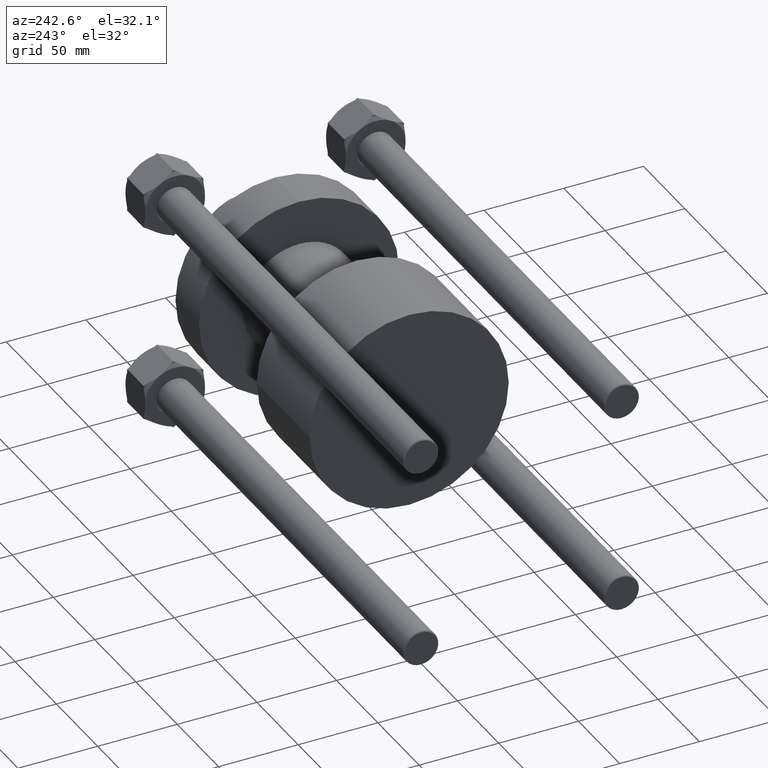
[diagram: clean part render]
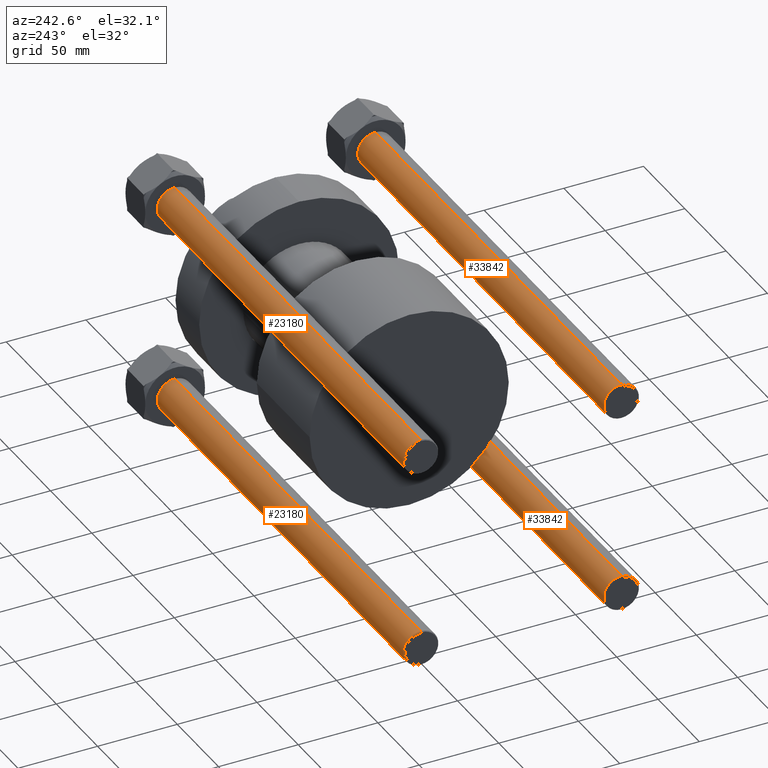
[diagram: same view with one multi-face feature highlighted, each face labeled with its STEP entity id]
A machine part, auxiliary view. The highlighted faces form ONE feature: a constant-radius fillet chain: 4 tangent blend faces with common blend radius 11 mm. The faces share edges in the B-rep.
Their STEP definitions:
[1] entity #23180 (Cylinder):
#1008 = DIRECTION ( 'NONE',  ( -0.000000000000000000, -0.000000000000000000, 1.000000000000000000 ) ) ;
#1138 = EDGE_CURVE ( 'NONE', #49031, #11271, #41630, .T. ) ;
#1172 = DIRECTION ( 'NONE',  ( -1.000000000000000000, 0.000000000000000000, 0.000000000000000000 ) ) ;
#2385 = EDGE_CURVE ( 'NONE', #49698, #22311, #16676, .T. ) ;
#4022 = VECTOR ( 'NONE', #42386, 1000.000000000000000 ) ;
#4256 = DIRECTION ( 'NONE',  ( -0.000000000000000000, -0.000000000000000000, -1.000000000000000000 ) ) ;
#7233 = AXIS2_PLACEMENT_3D ( 'NONE', #20088, #1008, #35116 ) ;
#7757 = DIRECTION ( 'NONE',  ( 0.000000000000000000, 0.000000000000000000, -1.000000000000000000 ) ) ;
#8257 = CARTESIAN_POINT ( 'NONE',  ( 0.000000000000000000, 0.000000000000000000, 323.5000000000000000 ) ) ;
#11271 = VERTEX_POINT ( 'NONE', #28974 ) ;
#11633 = DIRECTION ( 'NONE',  ( -0.000000000000000000, -0.000000000000000000, -1.000000000000000000 ) ) ;
#11712 = CIRCLE ( 'NONE', #35264, 11.00000000000000000 ) ;
#13468 = CARTESIAN_POINT ( 'NONE',  ( -11.00000000000000000, 0.000000000000000000, 0.5000000000000559552 ) ) ;
#13890 = EDGE_CURVE ( 'NONE', #49698, #49031, #11712, .T. ) ;
#16676 = LINE ( 'NONE', #32195, #21101 ) ;
#17119 = ORIENTED_EDGE ( 'NONE', *, *, #1138, .T. ) ;
#17306 = ORIENTED_EDGE ( 'NONE', *, *, #13890, .T. ) ;
#20088 = CARTESIAN_POINT ( 'NONE',  ( 0.000000000000000000, 0.000000000000000000, 0.5000000000000559552 ) ) ;
#20512 = CYLINDRICAL_SURFACE ( 'NONE', #32164, 11.00000000000000000 ) ;
#21101 = VECTOR ( 'NONE', #11633, 1000.000000000000000 ) ;
#21127 = ORIENTED_EDGE ( 'NONE', *, *, #45595, .T. ) ;
#22311 = VERTEX_POINT ( 'NONE', #13468 ) ;
#23180 = ADVANCED_FACE ( 'NONE', ( #39841 ), #20512, .T. ) ;
#28974 = CARTESIAN_POINT ( 'NONE',  ( 11.00000000000000000, 1.347111479062088405E-15, 0.5000000000000559552 ) ) ;
#29326 = CARTESIAN_POINT ( 'NONE',  ( 11.00000000000000000, 1.347111479062088405E-15, 323.5000000000000000 ) ) ;
#32164 = AXIS2_PLACEMENT_3D ( 'NONE', #36019, #4256, #1172 ) ;
#32195 = CARTESIAN_POINT ( 'NONE',  ( -11.00000000000000000, 0.000000000000000000, 324.0000000000000000 ) ) ;
#32273 = CARTESIAN_POINT ( 'NONE',  ( -11.00000000000000000, 0.000000000000000000, 323.5000000000000000 ) ) ;
#35116 = DIRECTION ( 'NONE',  ( 1.000000000000000000, 0.000000000000000000, 0.000000000000000000 ) ) ;
#35264 = AXIS2_PLACEMENT_3D ( 'NONE', #8257, #7757, #39033 ) ;
#35656 = CIRCLE ( 'NONE', #7233, 11.00000000000000000 ) ;
#36019 = CARTESIAN_POINT ( 'NONE',  ( 0.000000000000000000, 0.000000000000000000, 324.0000000000000000 ) ) ;
#37563 = EDGE_LOOP ( 'NONE', ( #17306, #17119, #21127, #38385 ) ) ;
#38385 = ORIENTED_EDGE ( 'NONE', *, *, #2385, .F. ) ;
#39033 = DIRECTION ( 'NONE',  ( 1.000000000000000000, 0.000000000000000000, 0.000000000000000000 ) ) ;
#39841 = FACE_OUTER_BOUND ( 'NONE', #37563, .T. ) ;
#41630 = LINE ( 'NONE', #49240, #4022 ) ;
#42386 = DIRECTION ( 'NONE',  ( -0.000000000000000000, -0.000000000000000000, -1.000000000000000000 ) ) ;
#45595 = EDGE_CURVE ( 'NONE', #11271, #22311, #35656, .T. ) ;
#49031 = VERTEX_POINT ( 'NONE', #29326 ) ;
#49240 = CARTESIAN_POINT ( 'NONE',  ( 11.00000000000000000, 1.347111479062088405E-15, 324.0000000000000000 ) ) ;
#49698 = VERTEX_POINT ( 'NONE', #32273 ) ;
[2] entity #33842 (Cylinder):
#1138 = EDGE_CURVE ( 'NONE', #49031, #11271, #41630, .T. ) ;
#2385 = EDGE_CURVE ( 'NONE', #49698, #22311, #16676, .T. ) ;
#4022 = VECTOR ( 'NONE', #42386, 1000.000000000000000 ) ;
#4146 = DIRECTION ( 'NONE',  ( 1.000000000000000000, 0.000000000000000000, 0.000000000000000000 ) ) ;
#6423 = CARTESIAN_POINT ( 'NONE',  ( 0.000000000000000000, 0.000000000000000000, 323.5000000000000000 ) ) ;
#11271 = VERTEX_POINT ( 'NONE', #28974 ) ;
#11633 = DIRECTION ( 'NONE',  ( -0.000000000000000000, -0.000000000000000000, -1.000000000000000000 ) ) ;
#12903 = AXIS2_PLACEMENT_3D ( 'NONE', #42056, #49939, #15119 ) ;
#13468 = CARTESIAN_POINT ( 'NONE',  ( -11.00000000000000000, 0.000000000000000000, 0.5000000000000559552 ) ) ;
#13540 = DIRECTION ( 'NONE',  ( 0.000000000000000000, 0.000000000000000000, -1.000000000000000000 ) ) ;
#15119 = DIRECTION ( 'NONE',  ( -1.000000000000000000, 0.000000000000000000, 0.000000000000000000 ) ) ;
#16676 = LINE ( 'NONE', #32195, #21101 ) ;
#18559 = AXIS2_PLACEMENT_3D ( 'NONE', #47343, #43522, #4146 ) ;
#21101 = VECTOR ( 'NONE', #11633, 1000.000000000000000 ) ;
#22311 = VERTEX_POINT ( 'NONE', #13468 ) ;
#23529 = ORIENTED_EDGE ( 'NONE', *, *, #1138, .F. ) ;
#28974 = CARTESIAN_POINT ( 'NONE',  ( 11.00000000000000000, 1.347111479062088405E-15, 0.5000000000000559552 ) ) ;
#29318 = DIRECTION ( 'NONE',  ( 1.000000000000000000, 0.000000000000000000, 0.000000000000000000 ) ) ;
#29326 = CARTESIAN_POINT ( 'NONE',  ( 11.00000000000000000, 1.347111479062088405E-15, 323.5000000000000000 ) ) ;
#29846 = AXIS2_PLACEMENT_3D ( 'NONE', #6423, #13540, #29318 ) ;
#32195 = CARTESIAN_POINT ( 'NONE',  ( -11.00000000000000000, 0.000000000000000000, 324.0000000000000000 ) ) ;
#32273 = CARTESIAN_POINT ( 'NONE',  ( -11.00000000000000000, 0.000000000000000000, 323.5000000000000000 ) ) ;
#33842 = ADVANCED_FACE ( 'NONE', ( #38015 ), #50183, .T. ) ;
#34787 = CIRCLE ( 'NONE', #18559, 11.00000000000000000 ) ;
#35155 = EDGE_LOOP ( 'NONE', ( #23529, #44065, #37127, #47528 ) ) ;
#37127 = ORIENTED_EDGE ( 'NONE', *, *, #2385, .T. ) ;
#38015 = FACE_OUTER_BOUND ( 'NONE', #35155, .T. ) ;
#38783 = CIRCLE ( 'NONE', #29846, 11.00000000000000000 ) ;
#41630 = LINE ( 'NONE', #49240, #4022 ) ;
#42056 = CARTESIAN_POINT ( 'NONE',  ( 0.000000000000000000, 0.000000000000000000, 324.0000000000000000 ) ) ;
#42386 = DIRECTION ( 'NONE',  ( -0.000000000000000000, -0.000000000000000000, -1.000000000000000000 ) ) ;
#43092 = EDGE_CURVE ( 'NONE', #49031, #49698, #38783, .T. ) ;
#43522 = DIRECTION ( 'NONE',  ( -0.000000000000000000, -0.000000000000000000, 1.000000000000000000 ) ) ;
#44065 = ORIENTED_EDGE ( 'NONE', *, *, #43092, .T. ) ;
#45292 = EDGE_CURVE ( 'NONE', #22311, #11271, #34787, .T. ) ;
#47343 = CARTESIAN_POINT ( 'NONE',  ( 0.000000000000000000, 0.000000000000000000, 0.5000000000000559552 ) ) ;
#47528 = ORIENTED_EDGE ( 'NONE', *, *, #45292, .T. ) ;
#49031 = VERTEX_POINT ( 'NONE', #29326 ) ;
#49240 = CARTESIAN_POINT ( 'NONE',  ( 11.00000000000000000, 1.347111479062088405E-15, 324.0000000000000000 ) ) ;
#49698 = VERTEX_POINT ( 'NONE', #32273 ) ;
#49939 = DIRECTION ( 'NONE',  ( -0.000000000000000000, -0.000000000000000000, -1.000000000000000000 ) ) ;
#50183 = CYLINDRICAL_SURFACE ( 'NONE', #12903, 11.00000000000000000 ) ;
[3] entity #23180 (Cylinder):
#1008 = DIRECTION ( 'NONE',  ( -0.000000000000000000, -0.000000000000000000, 1.000000000000000000 ) ) ;
#1138 = EDGE_CURVE ( 'NONE', #49031, #11271, #41630, .T. ) ;
#1172 = DIRECTION ( 'NONE',  ( -1.000000000000000000, 0.000000000000000000, 0.000000000000000000 ) ) ;
#2385 = EDGE_CURVE ( 'NONE', #49698, #22311, #16676, .T. ) ;
#4022 = VECTOR ( 'NONE', #42386, 1000.000000000000000 ) ;
#4256 = DIRECTION ( 'NONE',  ( -0.000000000000000000, -0.000000000000000000, -1.000000000000000000 ) ) ;
#7233 = AXIS2_PLACEMENT_3D ( 'NONE', #20088, #1008, #35116 ) ;
#7757 = DIRECTION ( 'NONE',  ( 0.000000000000000000, 0.000000000000000000, -1.000000000000000000 ) ) ;
#8257 = CARTESIAN_POINT ( 'NONE',  ( 0.000000000000000000, 0.000000000000000000, 323.5000000000000000 ) ) ;
#11271 = VERTEX_POINT ( 'NONE', #28974 ) ;
#11633 = DIRECTION ( 'NONE',  ( -0.000000000000000000, -0.000000000000000000, -1.000000000000000000 ) ) ;
#11712 = CIRCLE ( 'NONE', #35264, 11.00000000000000000 ) ;
#13468 = CARTESIAN_POINT ( 'NONE',  ( -11.00000000000000000, 0.000000000000000000, 0.5000000000000559552 ) ) ;
#13890 = EDGE_CURVE ( 'NONE', #49698, #49031, #11712, .T. ) ;
#16676 = LINE ( 'NONE', #32195, #21101 ) ;
#17119 = ORIENTED_EDGE ( 'NONE', *, *, #1138, .T. ) ;
#17306 = ORIENTED_EDGE ( 'NONE', *, *, #13890, .T. ) ;
#20088 = CARTESIAN_POINT ( 'NONE',  ( 0.000000000000000000, 0.000000000000000000, 0.5000000000000559552 ) ) ;
#20512 = CYLINDRICAL_SURFACE ( 'NONE', #32164, 11.00000000000000000 ) ;
#21101 = VECTOR ( 'NONE', #11633, 1000.000000000000000 ) ;
#21127 = ORIENTED_EDGE ( 'NONE', *, *, #45595, .T. ) ;
#22311 = VERTEX_POINT ( 'NONE', #13468 ) ;
#23180 = ADVANCED_FACE ( 'NONE', ( #39841 ), #20512, .T. ) ;
#28974 = CARTESIAN_POINT ( 'NONE',  ( 11.00000000000000000, 1.347111479062088405E-15, 0.5000000000000559552 ) ) ;
#29326 = CARTESIAN_POINT ( 'NONE',  ( 11.00000000000000000, 1.347111479062088405E-15, 323.5000000000000000 ) ) ;
#32164 = AXIS2_PLACEMENT_3D ( 'NONE', #36019, #4256, #1172 ) ;
#32195 = CARTESIAN_POINT ( 'NONE',  ( -11.00000000000000000, 0.000000000000000000, 324.0000000000000000 ) ) ;
#32273 = CARTESIAN_POINT ( 'NONE',  ( -11.00000000000000000, 0.000000000000000000, 323.5000000000000000 ) ) ;
#35116 = DIRECTION ( 'NONE',  ( 1.000000000000000000, 0.000000000000000000, 0.000000000000000000 ) ) ;
#35264 = AXIS2_PLACEMENT_3D ( 'NONE', #8257, #7757, #39033 ) ;
#35656 = CIRCLE ( 'NONE', #7233, 11.00000000000000000 ) ;
#36019 = CARTESIAN_POINT ( 'NONE',  ( 0.000000000000000000, 0.000000000000000000, 324.0000000000000000 ) ) ;
#37563 = EDGE_LOOP ( 'NONE', ( #17306, #17119, #21127, #38385 ) ) ;
#38385 = ORIENTED_EDGE ( 'NONE', *, *, #2385, .F. ) ;
#39033 = DIRECTION ( 'NONE',  ( 1.000000000000000000, 0.000000000000000000, 0.000000000000000000 ) ) ;
#39841 = FACE_OUTER_BOUND ( 'NONE', #37563, .T. ) ;
#41630 = LINE ( 'NONE', #49240, #4022 ) ;
#42386 = DIRECTION ( 'NONE',  ( -0.000000000000000000, -0.000000000000000000, -1.000000000000000000 ) ) ;
#45595 = EDGE_CURVE ( 'NONE', #11271, #22311, #35656, .T. ) ;
#49031 = VERTEX_POINT ( 'NONE', #29326 ) ;
#49240 = CARTESIAN_POINT ( 'NONE',  ( 11.00000000000000000, 1.347111479062088405E-15, 324.0000000000000000 ) ) ;
#49698 = VERTEX_POINT ( 'NONE', #32273 ) ;
[4] entity #33842 (Cylinder):
#1138 = EDGE_CURVE ( 'NONE', #49031, #11271, #41630, .T. ) ;
#2385 = EDGE_CURVE ( 'NONE', #49698, #22311, #16676, .T. ) ;
#4022 = VECTOR ( 'NONE', #42386, 1000.000000000000000 ) ;
#4146 = DIRECTION ( 'NONE',  ( 1.000000000000000000, 0.000000000000000000, 0.000000000000000000 ) ) ;
#6423 = CARTESIAN_POINT ( 'NONE',  ( 0.000000000000000000, 0.000000000000000000, 323.5000000000000000 ) ) ;
#11271 = VERTEX_POINT ( 'NONE', #28974 ) ;
#11633 = DIRECTION ( 'NONE',  ( -0.000000000000000000, -0.000000000000000000, -1.000000000000000000 ) ) ;
#12903 = AXIS2_PLACEMENT_3D ( 'NONE', #42056, #49939, #15119 ) ;
#13468 = CARTESIAN_POINT ( 'NONE',  ( -11.00000000000000000, 0.000000000000000000, 0.5000000000000559552 ) ) ;
#13540 = DIRECTION ( 'NONE',  ( 0.000000000000000000, 0.000000000000000000, -1.000000000000000000 ) ) ;
#15119 = DIRECTION ( 'NONE',  ( -1.000000000000000000, 0.000000000000000000, 0.000000000000000000 ) ) ;
#16676 = LINE ( 'NONE', #32195, #21101 ) ;
#18559 = AXIS2_PLACEMENT_3D ( 'NONE', #47343, #43522, #4146 ) ;
#21101 = VECTOR ( 'NONE', #11633, 1000.000000000000000 ) ;
#22311 = VERTEX_POINT ( 'NONE', #13468 ) ;
#23529 = ORIENTED_EDGE ( 'NONE', *, *, #1138, .F. ) ;
#28974 = CARTESIAN_POINT ( 'NONE',  ( 11.00000000000000000, 1.347111479062088405E-15, 0.5000000000000559552 ) ) ;
#29318 = DIRECTION ( 'NONE',  ( 1.000000000000000000, 0.000000000000000000, 0.000000000000000000 ) ) ;
#29326 = CARTESIAN_POINT ( 'NONE',  ( 11.00000000000000000, 1.347111479062088405E-15, 323.5000000000000000 ) ) ;
#29846 = AXIS2_PLACEMENT_3D ( 'NONE', #6423, #13540, #29318 ) ;
#32195 = CARTESIAN_POINT ( 'NONE',  ( -11.00000000000000000, 0.000000000000000000, 324.0000000000000000 ) ) ;
#32273 = CARTESIAN_POINT ( 'NONE',  ( -11.00000000000000000, 0.000000000000000000, 323.5000000000000000 ) ) ;
#33842 = ADVANCED_FACE ( 'NONE', ( #38015 ), #50183, .T. ) ;
#34787 = CIRCLE ( 'NONE', #18559, 11.00000000000000000 ) ;
#35155 = EDGE_LOOP ( 'NONE', ( #23529, #44065, #37127, #47528 ) ) ;
#37127 = ORIENTED_EDGE ( 'NONE', *, *, #2385, .T. ) ;
#38015 = FACE_OUTER_BOUND ( 'NONE', #35155, .T. ) ;
#38783 = CIRCLE ( 'NONE', #29846, 11.00000000000000000 ) ;
#41630 = LINE ( 'NONE', #49240, #4022 ) ;
#42056 = CARTESIAN_POINT ( 'NONE',  ( 0.000000000000000000, 0.000000000000000000, 324.0000000000000000 ) ) ;
#42386 = DIRECTION ( 'NONE',  ( -0.000000000000000000, -0.000000000000000000, -1.000000000000000000 ) ) ;
#43092 = EDGE_CURVE ( 'NONE', #49031, #49698, #38783, .T. ) ;
#43522 = DIRECTION ( 'NONE',  ( -0.000000000000000000, -0.000000000000000000, 1.000000000000000000 ) ) ;
#44065 = ORIENTED_EDGE ( 'NONE', *, *, #43092, .T. ) ;
#45292 = EDGE_CURVE ( 'NONE', #22311, #11271, #34787, .T. ) ;
#47343 = CARTESIAN_POINT ( 'NONE',  ( 0.000000000000000000, 0.000000000000000000, 0.5000000000000559552 ) ) ;
#47528 = ORIENTED_EDGE ( 'NONE', *, *, #45292, .T. ) ;
#49031 = VERTEX_POINT ( 'NONE', #29326 ) ;
#49240 = CARTESIAN_POINT ( 'NONE',  ( 11.00000000000000000, 1.347111479062088405E-15, 324.0000000000000000 ) ) ;
#49698 = VERTEX_POINT ( 'NONE', #32273 ) ;
#49939 = DIRECTION ( 'NONE',  ( -0.000000000000000000, -0.000000000000000000, -1.000000000000000000 ) ) ;
#50183 = CYLINDRICAL_SURFACE ( 'NONE', #12903, 11.00000000000000000 ) ;